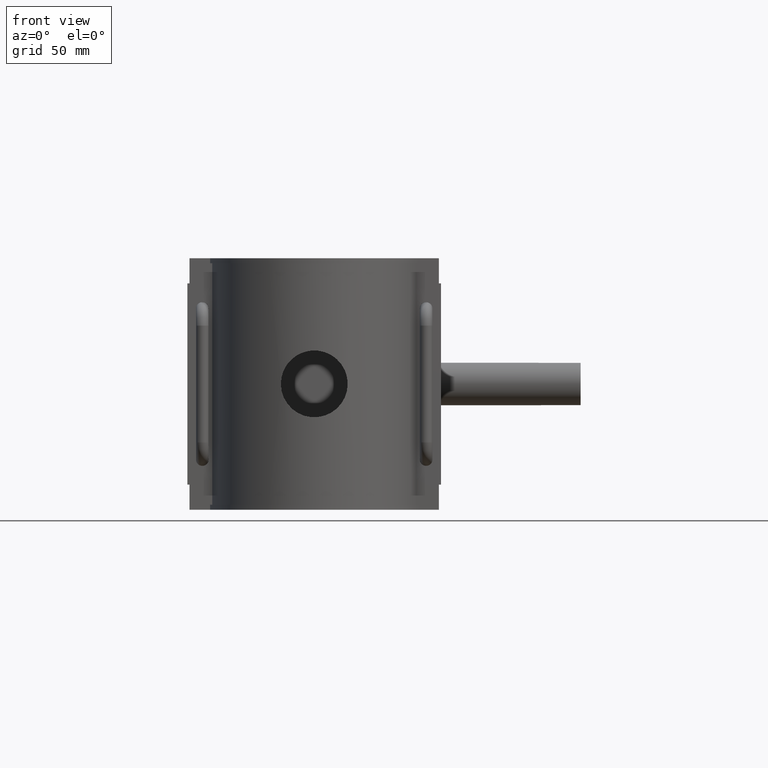
[diagram: clean part render]
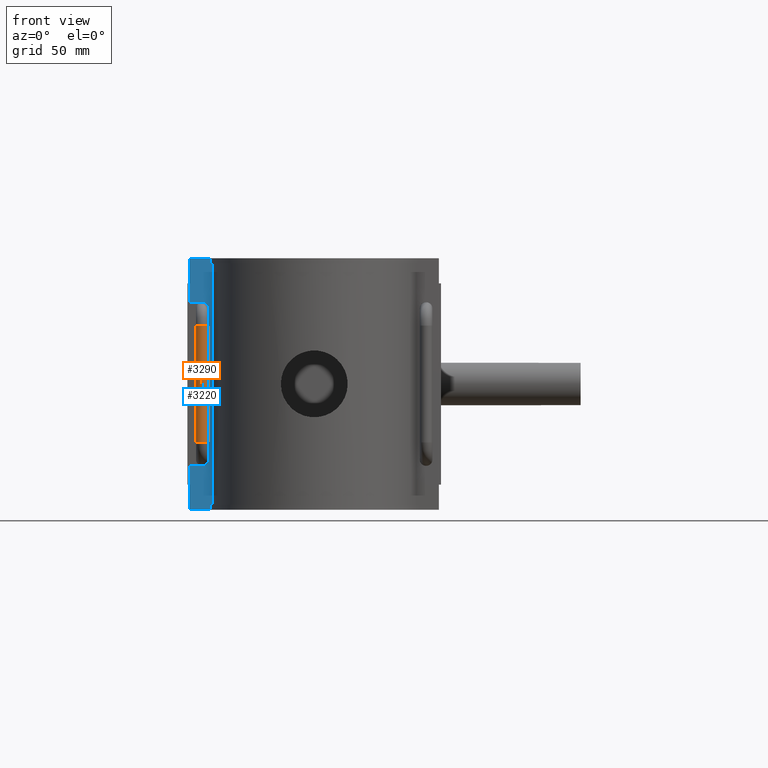
[diagram: same view with the hole feature highlighted: cylindrical wall and planar end face, labeled with their STEP entity ids]
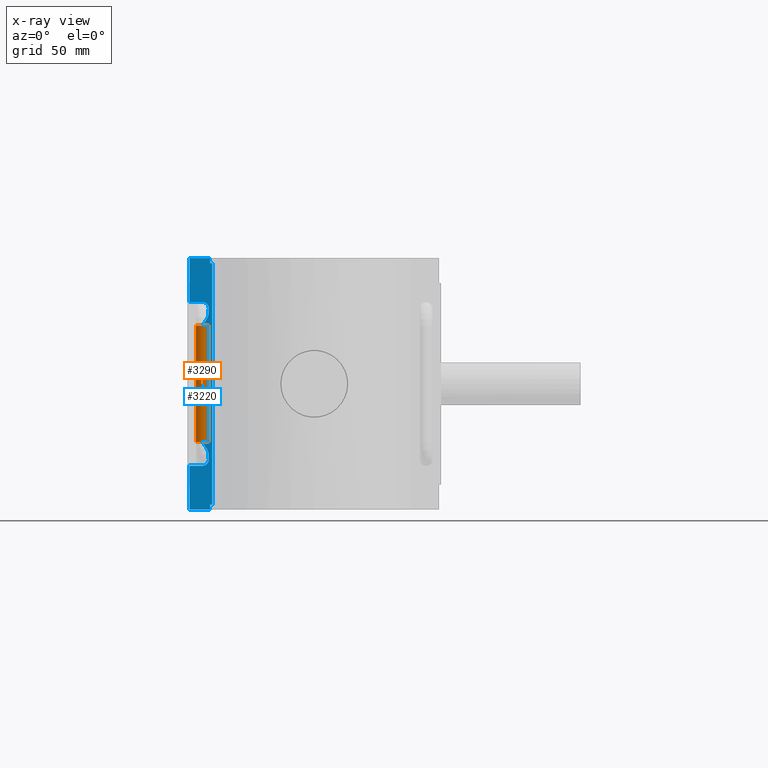
[diagram: x-ray of the same camera — body ghosted, the hole faces saturated]
A machine part, front view. The highlighted faces form one hole feature of diameter 6 mm: the cylindrical wall (entity #3290, orange) and its adjacent planar end face (entity #3220, blue) — they share a circular edge in the B-rep.
The next image is the same camera in x-ray (body ghosted, the hole faces saturated) — the bore reads through the body.
Wall:
#122=LINE('',#5447,#409);
#409=VECTOR('',#3991,54.7999999999999);
#763=CYLINDRICAL_SURFACE('',#3582,3.);
#910=FACE_OUTER_BOUND('',#1146,.T.);
#1146=EDGE_LOOP('',(#2722,#2723,#2724,#2725));
#1298=CIRCLE('',#3551,3.);
#1302=CIRCLE('',#3556,3.);
#1440=VERTEX_POINT('',#5433);
#1441=VERTEX_POINT('',#5446);
#1795=EDGE_CURVE('',#1441,#1440,#122,.T.);
#1958=EDGE_CURVE('',#1441,#1441,#1298,.T.);
#1968=EDGE_CURVE('',#1440,#1440,#1302,.T.);
#2722=ORIENTED_EDGE('',*,*,#1968,.F.);
#2723=ORIENTED_EDGE('',*,*,#1795,.F.);
#2724=ORIENTED_EDGE('',*,*,#1958,.T.);
#2725=ORIENTED_EDGE('',*,*,#1795,.T.);
#3290=ADVANCED_FACE('',(#910),#763,.T.);
#3551=AXIS2_PLACEMENT_3D('',#6145,#4261,#4262);
#3556=AXIS2_PLACEMENT_3D('',#6223,#4271,#4272);
#3582=AXIS2_PLACEMENT_3D('',#6306,#4337,#4338);
#3991=DIRECTION('',(0.,0.,1.));
#4261=DIRECTION('center_axis',(0.,6.12323399573677E-17,1.));
#4262=DIRECTION('ref_axis',(1.,0.,0.));
#4271=DIRECTION('center_axis',(0.,6.12323399573677E-17,1.));
#4272=DIRECTION('ref_axis',(1.,0.,0.));
#4337=DIRECTION('center_axis',(0.,0.,1.));
#4338=DIRECTION('ref_axis',(1.,0.,0.));
#5433=CARTESIAN_POINT('',(-52.5,-9.375,27.3999999999999));
#5446=CARTESIAN_POINT('',(-52.5,-9.375,-27.4));
#5447=CARTESIAN_POINT('',(-52.5,-9.375,27.3999999999999));
#6145=CARTESIAN_POINT('Origin',(-52.5,-12.3749999999995,-27.4));
#6223=CARTESIAN_POINT('Origin',(-52.5,-12.3749999999995,27.3999999999999));
#6306=CARTESIAN_POINT('Origin',(-52.5,-12.3749999999995,27.3999999999999));
End face:
#109=LINE('',#5403,#396);
#110=LINE('',#5406,#397);
#116=LINE('',#5420,#403);
#117=LINE('',#5422,#404);
#118=LINE('',#5424,#405);
#119=LINE('',#5426,#406);
#120=LINE('',#5428,#407);
#121=LINE('',#5430,#408);
#122=LINE('',#5447,#409);
#123=LINE('',#5464,#410);
#124=LINE('',#5466,#411);
#125=LINE('',#5467,#412);
#396=VECTOR('',#3968,2.36);
#397=VECTOR('',#3971,0.993171049292192);
#403=VECTOR('',#3983,113.28);
#404=VECTOR('',#3984,0.993171049292192);
#405=VECTOR('',#3985,2.36);
#406=VECTOR('',#3986,9.66676336755878);
#407=VECTOR('',#3987,20.6);
#408=VECTOR('',#3988,6.02433467297778);
#409=VECTOR('',#3991,54.7999999999999);
#410=VECTOR('',#3994,6.02433467297778);
#411=VECTOR('',#3995,20.6);
#412=VECTOR('',#3996,9.66676336755878);
#689=B_SPLINE_CURVE_WITH_KNOTS('',3,(#5434,#5435,#5436,#5437,#5438,#5439,
#5440,#5441,#5442,#5443,#5444,#5445),.UNSPECIFIED.,.F.,.F.,(4,2,2,2,2,4),
(1.55418267469211,1.6414383672911,1.76844964601289,1.89546092473468,2.10094201058331,
2.30642309643194),.UNSPECIFIED.);
#690=B_SPLINE_CURVE_WITH_KNOTS('',3,(#5449,#5450,#5451,#5452,#5453,#5454,
#5455,#5456,#5457,#5458,#5459,#5460),.UNSPECIFIED.,.F.,.F.,(4,2,2,2,2,4),
(0.,0.205481085848634,0.410962171697267,0.537973450419057,0.664984729140847,
0.75224042173983),.UNSPECIFIED.);
#840=FACE_OUTER_BOUND('',#1050,.T.);
#1050=EDGE_LOOP('',(#2370,#2371,#2372,#2373,#2374,#2375,#2376,#2377,#2378,
#2379,#2380,#2381,#2382,#2383,#2384,#2385));
#1268=CIRCLE('',#3472,3.);
#1269=CIRCLE('',#3473,3.);
#1424=VERTEX_POINT('',#5396);
#1427=VERTEX_POINT('',#5401);
#1428=VERTEX_POINT('',#5405);
#1433=VERTEX_POINT('',#5419);
#1434=VERTEX_POINT('',#5421);
#1435=VERTEX_POINT('',#5423);
#1436=VERTEX_POINT('',#5425);
#1437=VERTEX_POINT('',#5427);
#1438=VERTEX_POINT('',#5429);
#1439=VERTEX_POINT('',#5431);
#1440=VERTEX_POINT('',#5433);
#1441=VERTEX_POINT('',#5446);
#1442=VERTEX_POINT('',#5448);
#1443=VERTEX_POINT('',#5461);
#1444=VERTEX_POINT('',#5463);
#1445=VERTEX_POINT('',#5465);
#1779=EDGE_CURVE('',#1424,#1427,#109,.T.);
#1780=EDGE_CURVE('',#1427,#1428,#110,.T.);
#1787=EDGE_CURVE('',#1428,#1433,#116,.T.);
#1788=EDGE_CURVE('',#1433,#1434,#117,.T.);
#1789=EDGE_CURVE('',#1434,#1435,#118,.T.);
#1790=EDGE_CURVE('',#1436,#1435,#119,.T.);
#1791=EDGE_CURVE('',#1437,#1436,#120,.T.);
#1792=EDGE_CURVE('',#1437,#1438,#121,.T.);
#1793=EDGE_CURVE('',#1438,#1439,#1268,.T.);
#1794=EDGE_CURVE('',#1439,#1440,#689,.T.);
#1795=EDGE_CURVE('',#1441,#1440,#122,.T.);
#1796=EDGE_CURVE('',#1441,#1442,#690,.T.);
#1797=EDGE_CURVE('',#1442,#1443,#1269,.T.);
#1798=EDGE_CURVE('',#1443,#1444,#123,.T.);
#1799=EDGE_CURVE('',#1445,#1444,#124,.T.);
#1800=EDGE_CURVE('',#1424,#1445,#125,.T.);
#2370=ORIENTED_EDGE('',*,*,#1779,.T.);
#2371=ORIENTED_EDGE('',*,*,#1780,.T.);
#2372=ORIENTED_EDGE('',*,*,#1787,.T.);
#2373=ORIENTED_EDGE('',*,*,#1788,.T.);
#2374=ORIENTED_EDGE('',*,*,#1789,.T.);
#2375=ORIENTED_EDGE('',*,*,#1790,.F.);
#2376=ORIENTED_EDGE('',*,*,#1791,.F.);
#2377=ORIENTED_EDGE('',*,*,#1792,.T.);
#2378=ORIENTED_EDGE('',*,*,#1793,.T.);
#2379=ORIENTED_EDGE('',*,*,#1794,.T.);
#2380=ORIENTED_EDGE('',*,*,#1795,.F.);
#2381=ORIENTED_EDGE('',*,*,#1796,.T.);
#2382=ORIENTED_EDGE('',*,*,#1797,.T.);
#2383=ORIENTED_EDGE('',*,*,#1798,.T.);
#2384=ORIENTED_EDGE('',*,*,#1799,.F.);
#2385=ORIENTED_EDGE('',*,*,#1800,.F.);
#3071=PLANE('',#3471);
#3220=ADVANCED_FACE('',(#840),#3071,.T.);
#3471=AXIS2_PLACEMENT_3D('',#5418,#3981,#3982);
#3472=AXIS2_PLACEMENT_3D('',#5432,#3989,#3990);
#3473=AXIS2_PLACEMENT_3D('',#5462,#3992,#3993);
#3968=DIRECTION('',(0.,0.,1.));
#3971=DIRECTION('',(1.,0.,0.));
#3981=DIRECTION('center_axis',(0.,-1.,0.));
#3982=DIRECTION('ref_axis',(1.,0.,0.));
#3983=DIRECTION('',(0.,0.,1.));
#3984=DIRECTION('',(-1.,0.,0.));
#3985=DIRECTION('',(0.,0.,1.));
#3986=DIRECTION('',(1.,0.,0.));
#3987=DIRECTION('',(0.,0.,1.));
#3988=DIRECTION('',(1.,0.,7.37158929503087E-16));
#3989=DIRECTION('center_axis',(0.,1.,0.));
#3990=DIRECTION('ref_axis',(-1.,0.,0.));
#3991=DIRECTION('',(0.,0.,1.));
#3992=DIRECTION('center_axis',(0.,1.,0.));
#3993=DIRECTION('ref_axis',(-1.,0.,0.));
#3994=DIRECTION('',(-1.,0.,0.));
#3995=DIRECTION('',(0.,0.,1.));
#3996=DIRECTION('',(-1.,0.,0.));
#5396=CARTESIAN_POINT('',(-48.8332366324412,-9.375,-59.));
#5401=CARTESIAN_POINT('',(-48.8332366324412,-9.375,-56.64));
#5403=CARTESIAN_POINT('',(-48.8332366324412,-9.375,-59.));
#5405=CARTESIAN_POINT('',(-47.840065583149,-9.375,-56.64));
#5406=CARTESIAN_POINT('',(-29.25,-9.375,-56.64));
#5418=CARTESIAN_POINT('Origin',(-58.5,-9.375,0.));
#5419=CARTESIAN_POINT('',(-47.840065583149,-9.375,56.64));
#5420=CARTESIAN_POINT('',(-47.840065583149,-9.375,0.));
#5421=CARTESIAN_POINT('',(-48.8332366324412,-9.375,56.64));
#5422=CARTESIAN_POINT('',(-29.25,-9.375,56.64));
#5423=CARTESIAN_POINT('',(-48.8332366324412,-9.375,59.));
#5424=CARTESIAN_POINT('',(-48.8332366324412,-9.375,59.));
#5425=CARTESIAN_POINT('',(-58.5,-9.375,59.));
#5426=CARTESIAN_POINT('',(-58.5,-9.375,59.));
#5427=CARTESIAN_POINT('',(-58.5,-9.375,38.4));
#5428=CARTESIAN_POINT('',(-58.5,-9.375,0.));
#5429=CARTESIAN_POINT('',(-52.4756653270222,-9.375,38.4));
#5430=CARTESIAN_POINT('',(-55.4878326635111,-9.375,38.4));
#5431=CARTESIAN_POINT('',(-49.592907556629,-9.375,34.5695136140564));
#5432=CARTESIAN_POINT('Origin',(-52.4756653270222,-9.375,35.4));
#5433=CARTESIAN_POINT('',(-52.5,-9.375,27.3999999999999));
#5434=CARTESIAN_POINT('Ctrl Pts',(-49.592907556629,-9.375,34.5695136140564));
#5435=CARTESIAN_POINT('Ctrl Pts',(-49.5281744318221,-9.375,34.259817704623));
#5436=CARTESIAN_POINT('Ctrl Pts',(-49.5,-9.375,33.9358503070612));
#5437=CARTESIAN_POINT('Ctrl Pts',(-49.5,-9.375,33.2216270693253));
#5438=CARTESIAN_POINT('Ctrl Pts',(-49.5580680938667,-9.375,32.762701361354));
#5439=CARTESIAN_POINT('Ctrl Pts',(-49.7771836493012,-9.375,31.867336720585));
#5440=CARTESIAN_POINT('Ctrl Pts',(-49.9370980571853,-9.375,31.4306208843289));
#5441=CARTESIAN_POINT('Ctrl Pts',(-50.389168796984,-9.375,30.41870270221));
#5442=CARTESIAN_POINT('Ctrl Pts',(-50.770333637417,-9.375,29.7738388291261));
#5443=CARTESIAN_POINT('Ctrl Pts',(-51.6179526808835,-9.375,28.5365468681763));
#5444=CARTESIAN_POINT('Ctrl Pts',(-52.0805634898982,-9.375,27.9414902061385));
#5445=CARTESIAN_POINT('Ctrl Pts',(-52.5,-9.375,27.3999999999999));
#5446=CARTESIAN_POINT('',(-52.5,-9.375,-27.4));
#5447=CARTESIAN_POINT('',(-52.5,-9.375,27.3999999999999));
#5448=CARTESIAN_POINT('',(-49.592907556629,-9.375,-34.5695136140565));
#5449=CARTESIAN_POINT('Ctrl Pts',(-52.5,-9.375,-27.4));
#5450=CARTESIAN_POINT('Ctrl Pts',(-52.0805634898982,-9.375,-27.9414902061386));
#5451=CARTESIAN_POINT('Ctrl Pts',(-51.6179526808835,-9.375,-28.5365468681764));
#5452=CARTESIAN_POINT('Ctrl Pts',(-50.770333637417,-9.375,-29.7738388291262));
#5453=CARTESIAN_POINT('Ctrl Pts',(-50.389168796984,-9.375,-30.4187027022101));
#5454=CARTESIAN_POINT('Ctrl Pts',(-49.9370980571853,-9.375,-31.430620884329));
#5455=CARTESIAN_POINT('Ctrl Pts',(-49.7771836493012,-9.375,-31.8673367205852));
#5456=CARTESIAN_POINT('Ctrl Pts',(-49.5580680938667,-9.375,-32.7627013613541));
#5457=CARTESIAN_POINT('Ctrl Pts',(-49.5,-9.375,-33.2216270693254));
#5458=CARTESIAN_POINT('Ctrl Pts',(-49.5,-9.375,-33.9358503070613));
#5459=CARTESIAN_POINT('Ctrl Pts',(-49.5281744318221,-9.375,-34.2598177046231));
#5460=CARTESIAN_POINT('Ctrl Pts',(-49.592907556629,-9.375,-34.5695136140565));
#5461=CARTESIAN_POINT('',(-52.4756653270222,-9.375,-38.4));
#5462=CARTESIAN_POINT('Origin',(-52.4756653270222,-9.375,-35.4));
#5463=CARTESIAN_POINT('',(-58.5,-9.375,-38.4));
#5464=CARTESIAN_POINT('',(-58.5,-9.375,-38.4));
#5465=CARTESIAN_POINT('',(-58.5,-9.375,-59.));
#5466=CARTESIAN_POINT('',(-58.5,-9.375,0.));
#5467=CARTESIAN_POINT('',(-58.5,-9.375,-59.));